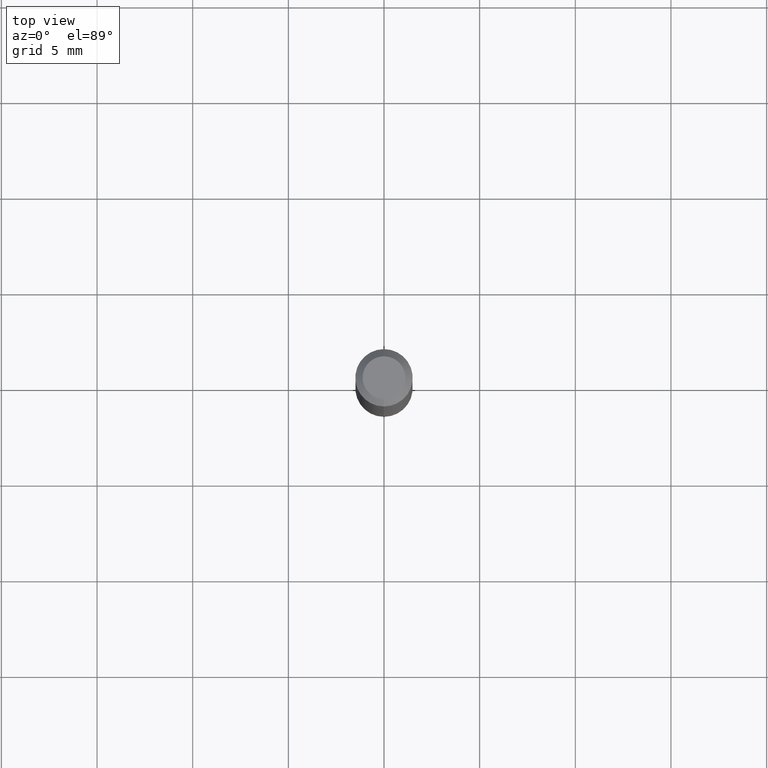
[diagram: clean part render]
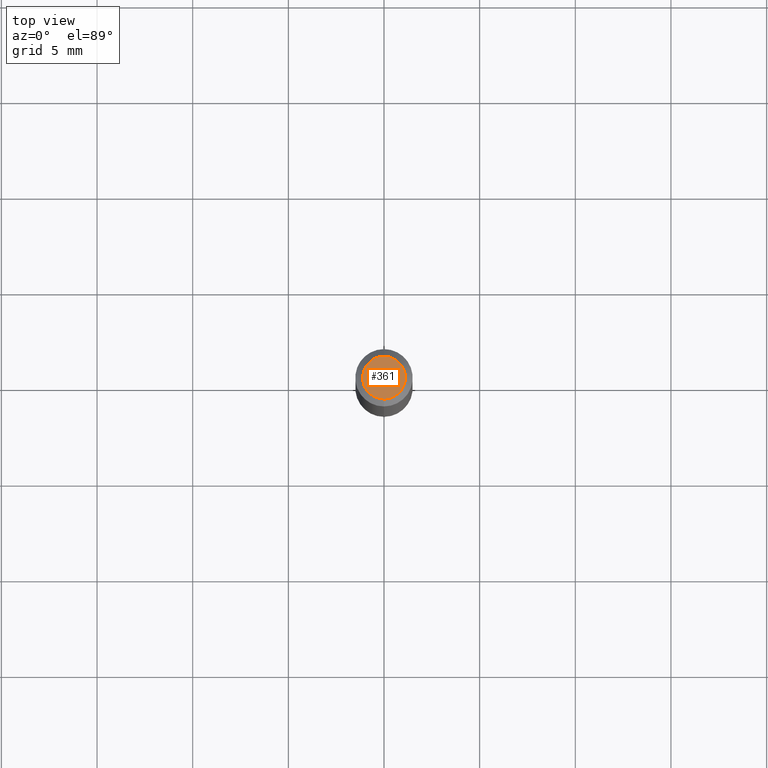
[diagram: same view with one face highlighted and labeled with its STEP entity id]
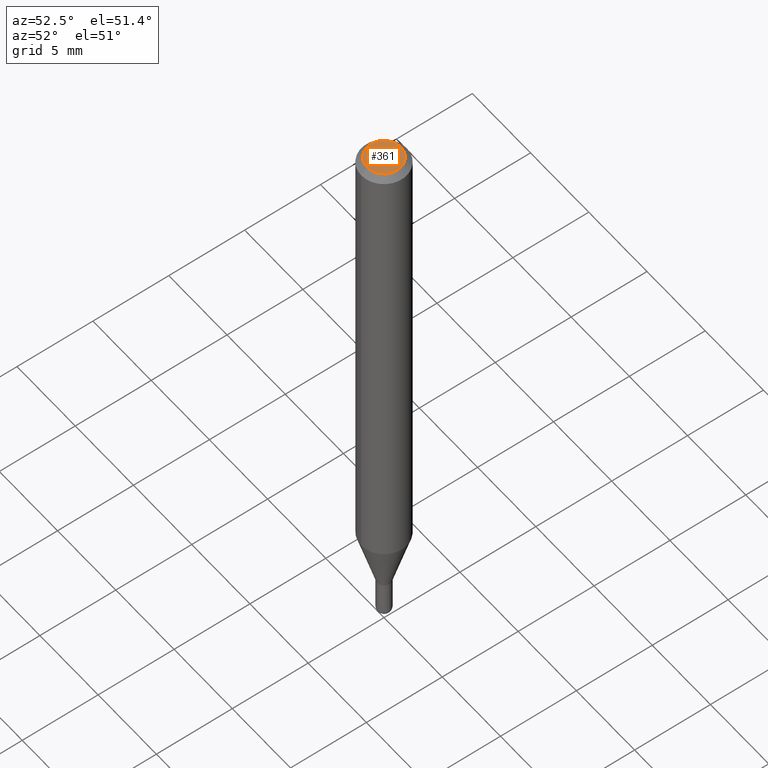
[diagram: same view with one face highlighted and labeled with its STEP entity id]
A machine part, top view. The second image highlights one B-rep face of the part: STEP entity #361.
A second angle (auxiliary view) of the same face is appended — the face is thin or edge-on in the first view.
In plain terms, the highlighted planar face has unit normal (0, -0, -1).
Its self-contained STEP definition (entity closure, byte-faithful):
#6 = EDGE_CURVE ( 'NONE', #43, #257, #79, .T. ) ;
#14 = CARTESIAN_POINT ( 'NONE',  ( 3.075995059520799729E-16, 0.04404999999999999888, -1.940516892611363191E-16 ) ) ;
#21 = EDGE_LOOP ( 'NONE', ( #332, #220 ) ) ;
#34 = DIRECTION ( 'NONE',  ( -2.445441615776996841E-29, 3.491520277055183358E-15, 1.000000000000000000 ) ) ;
#43 = VERTEX_POINT ( 'NONE', #151 ) ;
#55 = FACE_OUTER_BOUND ( 'NONE', #21, .T. ) ;
#70 = AXIS2_PLACEMENT_3D ( 'NONE', #14, #290, #409 ) ;
#75 = CARTESIAN_POINT ( 'NONE',  ( 1.968591312333160801E-45, -2.810689259519290324E-31, -8.050044211371100682E-17 ) ) ;
#79 = CIRCLE ( 'NONE', #299, 0.04404999999999999888 ) ;
#94 = EDGE_CURVE ( 'NONE', #257, #43, #383, .T. ) ;
#97 = DIRECTION ( 'NONE',  ( -6.982962677686265133E-15, -1.000000000000000000, 3.491520277055183358E-15 ) ) ;
#151 = CARTESIAN_POINT ( 'NONE',  ( 3.599717260347271507E-16, 0.04404999999999999888, -2.343019103179918348E-16 ) ) ;
#157 = AXIS2_PLACEMENT_3D ( 'NONE', #75, #34, #278 ) ;
#220 = ORIENTED_EDGE ( 'NONE', *, *, #94, .T. ) ;
#257 = VERTEX_POINT ( 'NONE', #483 ) ;
#278 = DIRECTION ( 'NONE',  ( -6.982962677686265133E-15, -1.000000000000000000, 3.491520277055183358E-15 ) ) ;
#290 = DIRECTION ( 'NONE',  ( 2.445441615776996841E-29, -3.491520277055183358E-15, -1.000000000000000000 ) ) ;
#299 = AXIS2_PLACEMENT_3D ( 'NONE', #448, #480, #97 ) ;
#332 = ORIENTED_EDGE ( 'NONE', *, *, #6, .T. ) ;
#361 = ADVANCED_FACE ( 'NONE', ( #55 ), #367, .F. ) ;
#367 = PLANE ( 'NONE',  #70 ) ;
#383 = CIRCLE ( 'NONE', #157, 0.04404999999999999888 ) ;
#409 = DIRECTION ( 'NONE',  ( 6.982962677686265922E-15, 1.000000000000000000, -3.491520277055183358E-15 ) ) ;
#448 = CARTESIAN_POINT ( 'NONE',  ( 1.968591312333160801E-45, -2.810689259519290324E-31, -8.050044211371100682E-17 ) ) ;
#480 = DIRECTION ( 'NONE',  ( -2.445441615776996841E-29, 3.491520277055183358E-15, 1.000000000000000000 ) ) ;
#483 = CARTESIAN_POINT ( 'NONE',  ( -3.536586717851222218E-16, -0.04404999999999999888, 7.330102609056979655E-17 ) ) ;